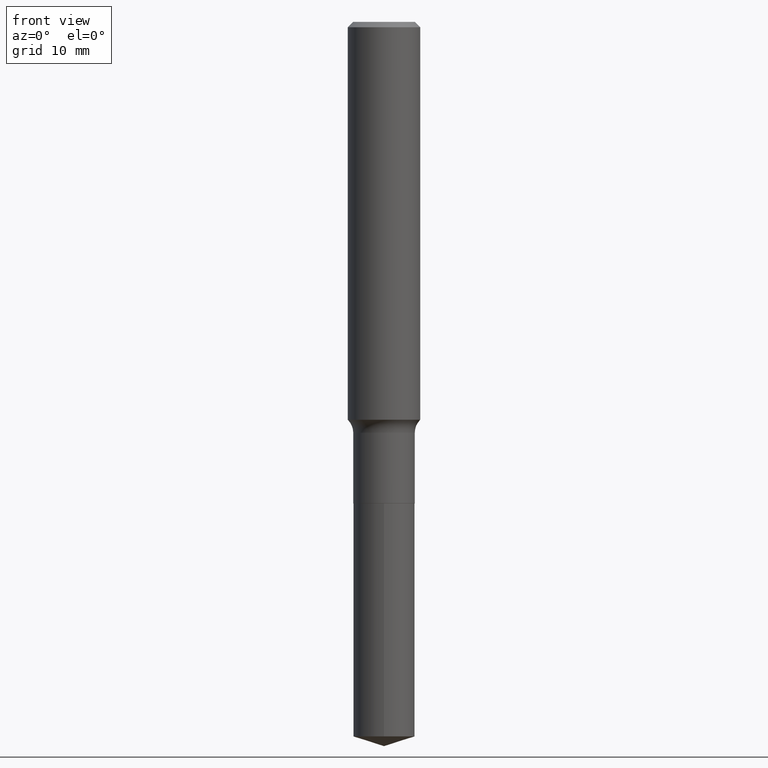
[diagram: clean part render]
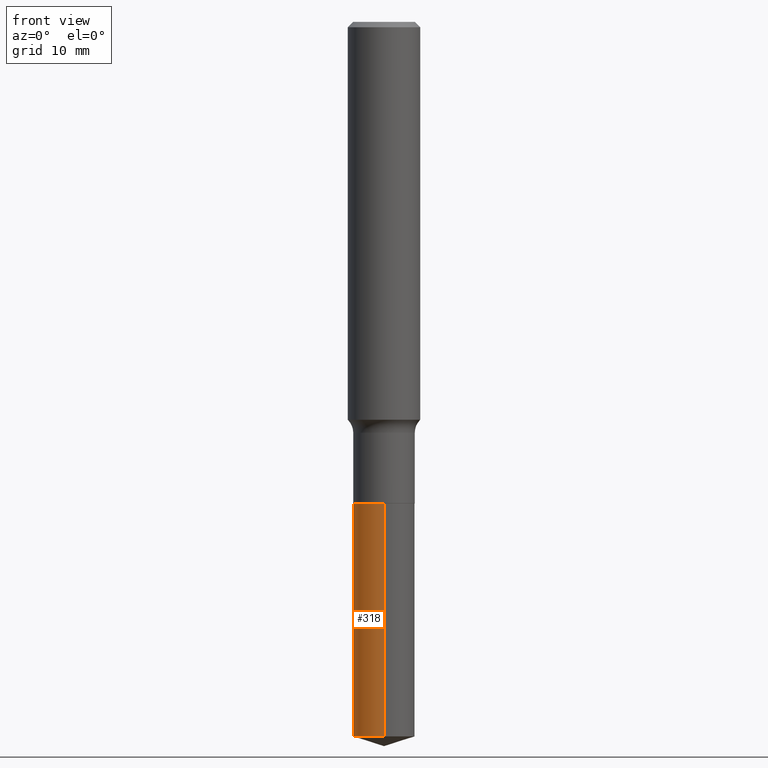
[diagram: same view with one face highlighted and labeled with its STEP entity id]
A machine part, front view. The second image highlights one B-rep face of the part: STEP entity #318.
In plain terms, the highlighted cylindrical surface (edge-blend (fillet) strip) has radius 3.3731 mm, axis along (-0, 0, 1).
Its self-contained STEP definition (entity closure, byte-faithful):
#15 = DIRECTION ( 'NONE',  ( -2.444881606690316001E-29, 3.492322241941048176E-15, 1.000000000000000000 ) ) ;
#17 = FACE_OUTER_BOUND ( 'NONE', #217, .T. ) ;
#28 = CARTESIAN_POINT ( 'NONE',  ( 9.436007530894885901E-16, 0.1327999999999927572, -2.078100000000000502 ) ) ;
#40 = AXIS2_PLACEMENT_3D ( 'NONE', #312, #458, #196 ) ;
#61 = CARTESIAN_POINT ( 'NONE',  ( -9.273374435966853408E-16, -0.1328000000000072456, -2.078099999999999614 ) ) ;
#77 = CARTESIAN_POINT ( 'NONE',  ( 9.436007530894881956E-16, 0.1327999999999892322, -3.083128320836872494 ) ) ;
#78 = DIRECTION ( 'NONE',  ( -2.444881606690316001E-29, 3.492322241941048570E-15, 1.000000000000000000 ) ) ;
#90 = VERTEX_POINT ( 'NONE', #77 ) ;
#92 = CARTESIAN_POINT ( 'NONE',  ( 5.081928726133333135E-29, -7.255647370249941067E-15, -2.078100000000000058 ) ) ;
#96 = CARTESIAN_POINT ( 'NONE',  ( 7.539103981950252717E-29, -1.076553012888921088E-14, -3.083128320836871605 ) ) ;
#97 = ORIENTED_EDGE ( 'NONE', *, *, #246, .F. ) ;
#113 = CARTESIAN_POINT ( 'NONE',  ( 9.436007530894637409E-16, 0.1327999999999927294, -2.078100000000000502 ) ) ;
#125 = VECTOR ( 'NONE', #78, 39.37007874015748143 ) ;
#145 = DIRECTION ( 'NONE',  ( -2.444881606690316001E-29, 3.492322241941048570E-15, 1.000000000000000000 ) ) ;
#196 = DIRECTION ( 'NONE',  ( -6.982962677686265133E-15, -1.000000000000000000, 4.114228906120878260E-15 ) ) ;
#206 = CARTESIAN_POINT ( 'NONE',  ( -9.273374435966853408E-16, -0.1328000000000072456, -2.078099999999999614 ) ) ;
#207 = DIRECTION ( 'NONE',  ( -6.982962677686265133E-15, -1.000000000000000000, 4.114228906120878260E-15 ) ) ;
#208 = EDGE_CURVE ( 'NONE', #437, #290, #445, .T. ) ;
#210 = VECTOR ( 'NONE', #145, 39.37007874015748143 ) ;
#217 = EDGE_LOOP ( 'NONE', ( #97, #477, #283, #491 ) ) ;
#246 = EDGE_CURVE ( 'NONE', #90, #437, #314, .T. ) ;
#253 = DIRECTION ( 'NONE',  ( -2.444881606690316001E-29, 3.492322241941048176E-15, 1.000000000000000000 ) ) ;
#256 = LINE ( 'NONE', #61, #210 ) ;
#283 = ORIENTED_EDGE ( 'NONE', *, *, #412, .T. ) ;
#289 = DIRECTION ( 'NONE',  ( -6.982962677686265133E-15, -1.000000000000000000, 4.114228906120878260E-15 ) ) ;
#290 = VERTEX_POINT ( 'NONE', #206 ) ;
#298 = CARTESIAN_POINT ( 'NONE',  ( -9.273374435966606889E-16, -0.1328000000000107705, -3.083128320836871161 ) ) ;
#312 = CARTESIAN_POINT ( 'NONE',  ( 5.081928726133333135E-29, -7.255647370249941067E-15, -2.078100000000000058 ) ) ;
#314 = LINE ( 'NONE', #113, #125 ) ;
#318 = ADVANCED_FACE ( 'NONE', ( #17 ), #400, .T. ) ;
#353 = EDGE_CURVE ( 'NONE', #90, #428, #378, .T. ) ;
#378 = CIRCLE ( 'NONE', #416, 0.1328000000000000014 ) ;
#400 = CYLINDRICAL_SURFACE ( 'NONE', #492, 0.1328000000000000014 ) ;
#412 = EDGE_CURVE ( 'NONE', #428, #290, #256, .T. ) ;
#416 = AXIS2_PLACEMENT_3D ( 'NONE', #96, #253, #289 ) ;
#428 = VERTEX_POINT ( 'NONE', #298 ) ;
#437 = VERTEX_POINT ( 'NONE', #28 ) ;
#445 = CIRCLE ( 'NONE', #40, 0.1328000000000000014 ) ;
#458 = DIRECTION ( 'NONE',  ( -2.444881606690316001E-29, 3.492322241941048176E-15, 1.000000000000000000 ) ) ;
#477 = ORIENTED_EDGE ( 'NONE', *, *, #353, .T. ) ;
#491 = ORIENTED_EDGE ( 'NONE', *, *, #208, .F. ) ;
#492 = AXIS2_PLACEMENT_3D ( 'NONE', #92, #15, #207 ) ;